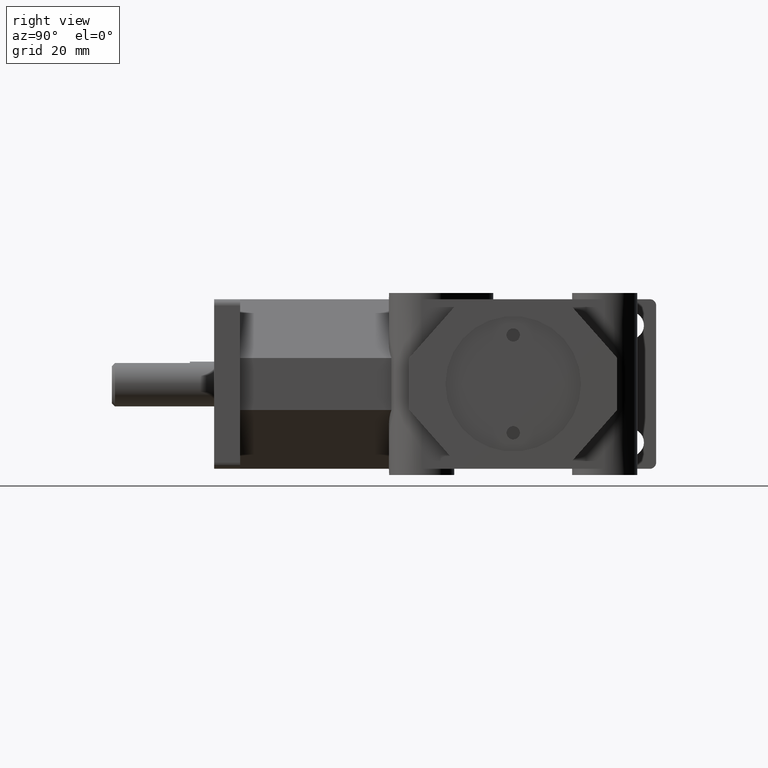
[diagram: clean part render]
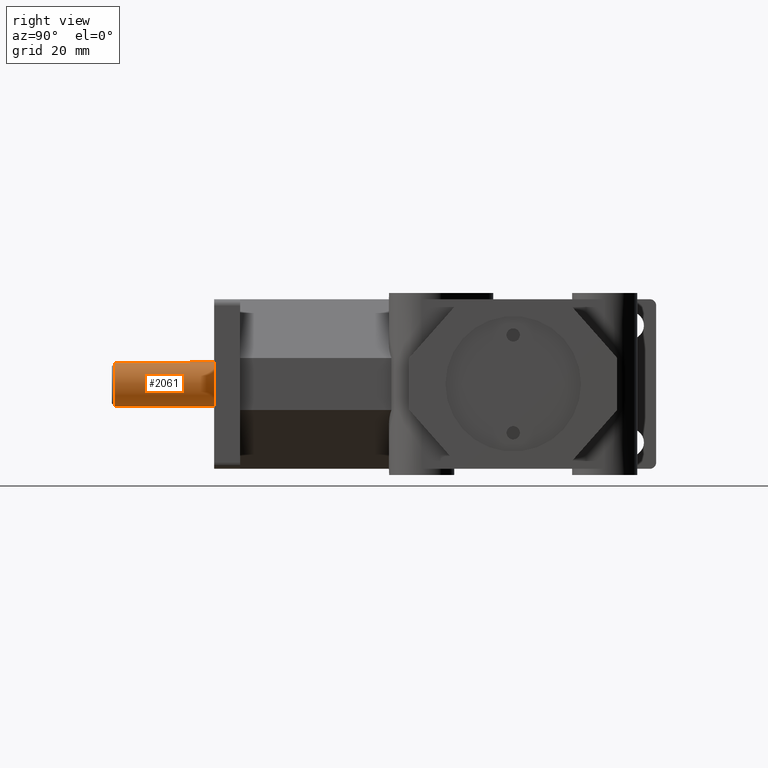
[diagram: same view with one face highlighted and labeled with its STEP entity id]
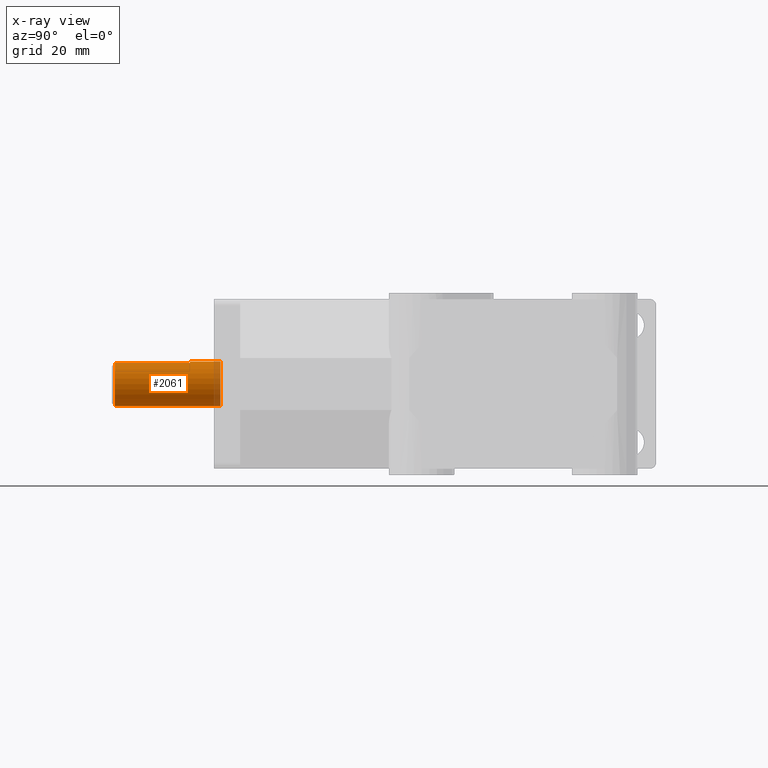
[diagram: x-ray of the same camera — body ghosted, the highlighted face saturated]
A machine part, right view. The second image highlights one B-rep face of the part: STEP entity #2061.
The next image is the same camera in x-ray: the body ghosted, the highlighted face saturated — about 6% of this face is hidden behind the body in this view.
In plain terms, the highlighted cylindrical surface (bore or boss wall) has radius 5.5 mm, axis along (0, -1, 0).
Its self-contained STEP definition (entity closure, byte-faithful):
#32=CYLINDRICAL_SURFACE('',#2234,5.5);
#121=CIRCLE('',#2232,5.5);
#122=CIRCLE('',#2233,5.5);
#123=CIRCLE('',#2235,5.5);
#124=CIRCLE('',#2236,5.5);
#219=FACE_OUTER_BOUND('',#336,.T.);
#336=EDGE_LOOP('',(#1546,#1547,#1548,#1549,#1550,#1551,#1552,#1553));
#554=LINE('',#3298,#751);
#555=LINE('',#3301,#752);
#556=LINE('',#3303,#753);
#751=VECTOR('',#2634,1.);
#752=VECTOR('',#2637,1.);
#753=VECTOR('',#2638,5.5);
#958=VERTEX_POINT('',#3282);
#961=VERTEX_POINT('',#3289);
#962=VERTEX_POINT('',#3293);
#963=VERTEX_POINT('',#3297);
#964=VERTEX_POINT('',#3299);
#965=VERTEX_POINT('',#3302);
#1190=EDGE_CURVE('',#961,#962,#121,.T.);
#1191=EDGE_CURVE('',#962,#958,#122,.T.);
#1192=EDGE_CURVE('',#961,#963,#554,.T.);
#1193=EDGE_CURVE('',#963,#964,#123,.T.);
#1194=EDGE_CURVE('',#964,#958,#555,.T.);
#1195=EDGE_CURVE('',#962,#965,#556,.T.);
#1196=EDGE_CURVE('',#965,#965,#124,.T.);
#1546=ORIENTED_EDGE('',*,*,#1190,.F.);
#1547=ORIENTED_EDGE('',*,*,#1192,.T.);
#1548=ORIENTED_EDGE('',*,*,#1193,.T.);
#1549=ORIENTED_EDGE('',*,*,#1194,.T.);
#1550=ORIENTED_EDGE('',*,*,#1191,.F.);
#1551=ORIENTED_EDGE('',*,*,#1195,.T.);
#1552=ORIENTED_EDGE('',*,*,#1196,.F.);
#1553=ORIENTED_EDGE('',*,*,#1195,.F.);
#2061=ADVANCED_FACE('',(#219),#32,.T.);
#2232=AXIS2_PLACEMENT_3D('',#3294,#2628,#2629);
#2233=AXIS2_PLACEMENT_3D('',#3295,#2630,#2631);
#2234=AXIS2_PLACEMENT_3D('',#3296,#2632,#2633);
#2235=AXIS2_PLACEMENT_3D('',#3300,#2635,#2636);
#2236=AXIS2_PLACEMENT_3D('',#3304,#2639,#2640);
#2628=DIRECTION('center_axis',(0.,-1.,0.));
#2629=DIRECTION('ref_axis',(1.,0.,0.));
#2630=DIRECTION('center_axis',(0.,-1.,0.));
#2631=DIRECTION('ref_axis',(1.,0.,0.));
#2632=DIRECTION('center_axis',(0.,-1.,0.));
#2633=DIRECTION('ref_axis',(1.,0.,0.));
#2634=DIRECTION('',(0.,1.,0.));
#2635=DIRECTION('center_axis',(-1.03022879413192E-31,1.,-1.09256953110645E-48));
#2636=DIRECTION('ref_axis',(1.,1.03022879413192E-31,-1.12559659053708E-79));
#2637=DIRECTION('',(0.,-1.,0.));
#2638=DIRECTION('',(0.,1.,0.));
#2639=DIRECTION('center_axis',(0.,1.,0.));
#2640=DIRECTION('ref_axis',(1.,0.,0.));
#3282=CARTESIAN_POINT('',(2.,-24.238,5.1234753829798));
#3289=CARTESIAN_POINT('',(-2.,-24.238,5.1234753829798));
#3293=CARTESIAN_POINT('',(-5.5,-24.238,-6.73555739531044E-16));
#3294=CARTESIAN_POINT('Origin',(0.,-24.238,0.));
#3295=CARTESIAN_POINT('Origin',(0.,-24.238,0.));
#3296=CARTESIAN_POINT('Origin',(0.,-11.738,0.));
#3297=CARTESIAN_POINT('',(-2.,-5.94999999999999,5.1234753829798));
#3298=CARTESIAN_POINT('',(-2.,-11.738,5.1234753829798));
#3299=CARTESIAN_POINT('',(2.,-5.94999999999999,5.1234753829798));
#3300=CARTESIAN_POINT('Origin',(0.,-5.94999999999999,0.));
#3301=CARTESIAN_POINT('',(2.,-11.738,5.1234753829798));
#3302=CARTESIAN_POINT('',(-5.5,1.52400000000001,-6.73555739531044E-16));
#3303=CARTESIAN_POINT('',(-5.5,-11.738,-6.73555739531044E-16));
#3304=CARTESIAN_POINT('Origin',(0.,1.52400000000001,0.));